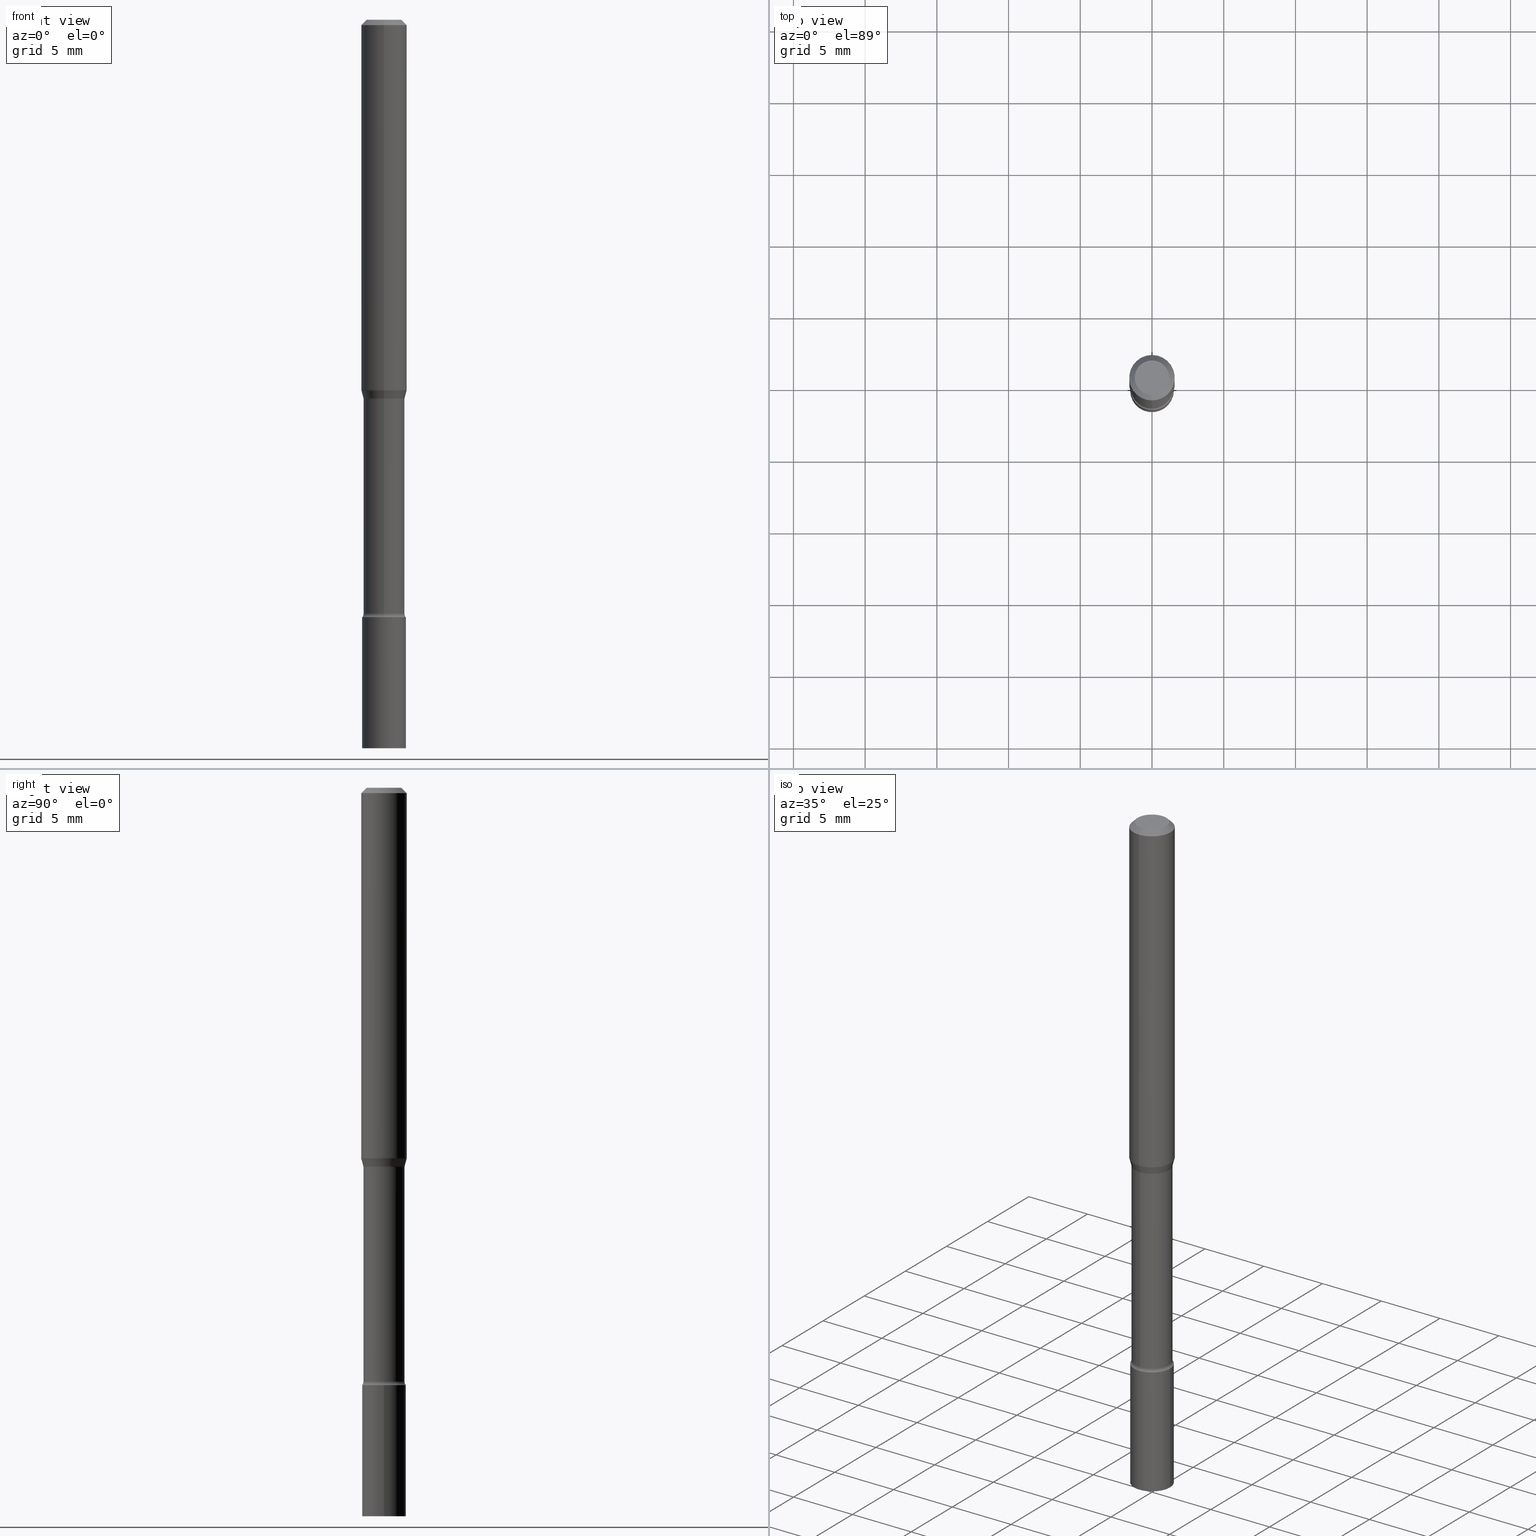
[diagram: canonical four-view strip — front | top / right | iso, engineering-drawing reading convention]
A machine part, canonical four-view strip (front | top / right | iso — engineering-drawing reading convention). The complete STEP part file that produces these views, byte-faithful:
ISO-10303-21;
HEADER;
FILE_DESCRIPTION (( 'STEP AP203' ),
    '1' );
FILE_NAME ('03480.STEP',
    '2024-03-08T21:29:29',
    ( '' ),
    ( '' ),
    'SwSTEP 2.0',
    'SolidWorks 2023',
    '' );
FILE_SCHEMA (( 'CONFIG_CONTROL_DESIGN' ));
ENDSEC;

DATA;
#1 = COORDINATED_UNIVERSAL_TIME_OFFSET ( 5, 0, .BEHIND. ) ;
#2 = LINE ( 'NONE', #295, #329 ) ;
#3 = ADVANCED_FACE ( 'NONE', ( #368 ), #223, .T. ) ;
#4 = CARTESIAN_POINT ( 'NONE',  ( 5.073275133327370099E-16, 0.07139999999999636915, -1.041974787463811225 ) ) ;
#5 = CARTESIAN_POINT ( 'NONE',  ( 3.316907271900976096E-16, 0.04749999999999999362, -1.803025897776820544E-16 ) ) ;
#6 = DIRECTION ( 'NONE',  ( -2.445468806185136597E-29, 3.491481338843145583E-15, 1.000000000000000000 ) ) ;
#7 = AXIS2_PLACEMENT_3D ( 'NONE', #405, #157, #76 ) ;
#8 = AXIS2_PLACEMENT_3D ( 'NONE', #200, #489, #378 ) ;
#9 = APPLICATION_PROTOCOL_DEFINITION ( 'international standard', 'config_control_design', 1994, #80 ) ;
#10 = CALENDAR_DATE ( 2024, 8, 3 ) ;
#11 = APPROVAL ( #298, 'UNSPECIFIED' ) ;
#12 = CARTESIAN_POINT ( 'NONE',  ( 4.010568842143624288E-29, -5.726029395702758897E-15, -1.639999999999999902 ) ) ;
#13 = PERSON_AND_ORGANIZATION_ROLE ( 'creator' ) ;
#14 = ORIENTED_EDGE ( 'NONE', *, *, #438, .F. ) ;
#15 = AXIS2_PLACEMENT_3D ( 'NONE', #473, #229, #435 ) ;
#16 = PERSON_AND_ORGANIZATION ( #182, #132 ) ;
#17 = AXIS2_PLACEMENT_3D ( 'NONE', #251, #411, #154 ) ;
#18 = ORIENTED_EDGE ( 'NONE', *, *, #341, .F. ) ;
#19 = DIRECTION ( 'NONE',  ( 6.982962677686265922E-15, 1.000000000000000000, -3.483106191921935554E-15 ) ) ;
#20 = CALENDAR_DATE ( 2024, 8, 3 ) ;
#21 = ADVANCED_FACE ( 'NONE', ( #194 ), #205, .F. ) ;
#22 = ORIENTED_EDGE ( 'NONE', *, *, #333, .T. ) ;
#23 = PRODUCT ( '03480', '03480', '', ( #451 ) ) ;
#24 = FACE_OUTER_BOUND ( 'NONE', #92, .T. ) ;
#25 = PERSON_AND_ORGANIZATION ( #182, #132 ) ;
#26 = ORIENTED_EDGE ( 'NONE', *, *, #136, .T. ) ;
#27 = ORIENTED_EDGE ( 'NONE', *, *, #341, .T. ) ;
#28 = CARTESIAN_POINT ( 'NONE',  ( -3.974081752709265530E-16, -0.05691111260566760616, -1.038092501787272859 ) ) ;
#29 = ORIENTED_EDGE ( 'NONE', *, *, #348, .T. ) ;
#30 = CIRCLE ( 'NONE', #176, 0.04749999999999999362 ) ;
#31 = DIRECTION ( 'NONE',  ( -2.445460846528019435E-29, 3.491492737525173105E-15, 1.000000000000000000 ) ) ;
#32 = APPROVAL ( #471, 'UNSPECIFIED' ) ;
#33 = PLANE ( 'NONE',  #118 ) ;
#34 = EDGE_CURVE ( 'NONE', #508, #105, #455, .T. ) ;
#35 = CARTESIAN_POINT ( 'NONE',  ( 0.000000000000000000, 0.000000000000000000, 0.000000000000000000 ) ) ;
#36 = DIRECTION ( 'NONE',  ( -6.982962677686265133E-15, -1.000000000000000000, 3.491492737525173500E-15 ) ) ;
#37 = CARTESIAN_POINT ( 'NONE',  ( 4.189777606612160768E-16, 0.05999999999999427319, -1.640000000000000346 ) ) ;
#38 = CARTESIAN_POINT ( 'NONE',  ( 4.043777764598214521E-16, 0.05691111260566035501, -1.038092501787273303 ) ) ;
#39 = DIRECTION ( 'NONE',  ( -2.445468806185136597E-29, 3.491481338843145583E-15, 1.000000000000000000 ) ) ;
#40 = CARTESIAN_POINT ( 'NONE',  ( 4.007461029686965945E-16, 0.05640000000000001956, -1.969201903964198546E-16 ) ) ;
#41 = DATE_AND_TIME ( #88, #206 ) ;
#42 = CIRCLE ( 'NONE', #504, 0.01500000000000003587 ) ;
#43 = LOCAL_TIME ( 16, 29, 29.00000000000000000, #1 ) ;
#44 = DIRECTION ( 'NONE',  ( -2.445460846528019435E-29, 3.491492737525173105E-15, 1.000000000000000000 ) ) ;
#45 = CC_DESIGN_PERSON_AND_ORGANIZATION_ASSIGNMENT ( #48, #376, ( #23 ) ) ;
#46 = DIRECTION ( 'NONE',  ( 2.445460846528018874E-29, -3.491492737525173105E-15, -1.000000000000000000 ) ) ;
#47 = DIRECTION ( 'NONE',  ( -2.445460846528019435E-29, 3.491492737525173105E-15, 1.000000000000000000 ) ) ;
#48 = PERSON_AND_ORGANIZATION ( #182, #132 ) ;
#49 = PERSON_AND_ORGANIZATION_ROLE ( 'creator' ) ;
#50 = DIRECTION ( 'NONE',  ( -6.982962677686268288E-15, -1.000000000000000000, 0.000000000000000000 ) ) ;
#51 = VERTEX_POINT ( 'NONE', #461 ) ;
#52 = ADVANCED_FACE ( 'NONE', ( #24 ), #502, .T. ) ;
#53 = EDGE_LOOP ( 'NONE', ( #381, #58, #436, #352 ) ) ;
#54 = ORIENTED_EDGE ( 'NONE', *, *, #482, .T. ) ;
#55 = CARTESIAN_POINT ( 'NONE',  ( 4.010568842143624288E-29, -5.726029395702758897E-15, -1.639999999999999902 ) ) ;
#56 = CIRCLE ( 'NONE', #8, 0.06250000000000000000 ) ;
#57 = PRODUCT_DEFINITION_SHAPE ( 'NONE', 'NONE',  #407 ) ;
#58 = ORIENTED_EDGE ( 'NONE', *, *, #169, .T. ) ;
#59 = VERTEX_POINT ( 'NONE', #98 ) ;
#60 = EDGE_LOOP ( 'NONE', ( #382, #191 ) ) ;
#61 = PLANE ( 'NONE',  #484 ) ;
#62 = PERSON_AND_ORGANIZATION ( #182, #132 ) ;
#63 = EDGE_LOOP ( 'NONE', ( #392, #421 ) ) ;
#64 = AXIS2_PLACEMENT_3D ( 'NONE', #350, #319, #19 ) ;
#65 = ORIENTED_EDGE ( 'NONE', *, *, #83, .T. ) ;
#66 = DIRECTION ( 'NONE',  ( -6.982962677686265922E-15, -1.000000000000000000, 4.370956789862821150E-15 ) ) ;
#67 = ORIENTED_EDGE ( 'NONE', *, *, #83, .F. ) ;
#68 = ADVANCED_FACE ( 'NONE', ( #388 ), #499, .T. ) ;
#69 = DIRECTION ( 'NONE',  ( 1.000000000000000000, -6.982962677686267499E-15, 4.876176775795936353E-29 ) ) ;
#70 = CARTESIAN_POINT ( 'NONE',  ( 3.668191269792036562E-31, -5.237239106287770234E-17, -0.01500000000000003067 ) ) ;
#71 = EDGE_CURVE ( 'NONE', #464, #226, #433, .T. ) ;
#72 = AXIS2_PLACEMENT_3D ( 'NONE', #197, #31, #106 ) ;
#73 = AXIS2_PLACEMENT_3D ( 'NONE', #476, #409, #326 ) ;
#74 = DIRECTION ( 'NONE',  ( -2.445460846528019435E-29, 3.491492737525173105E-15, 1.000000000000000000 ) ) ;
#75 = ADVANCED_FACE ( 'NONE', ( #510 ), #518, .T. ) ;
#76 = DIRECTION ( 'NONE',  ( -6.982962677686265922E-15, -1.000000000000000000, 2.421851058212999609E-15 ) ) ;
#77 = DIRECTION ( 'NONE',  ( -6.982962677686266711E-15, -1.000000000000000000, 3.491492737525173105E-15 ) ) ;
#78 = CYLINDRICAL_SURFACE ( 'NONE', #17, 0.06250000000000000000 ) ;
#79 = CC_DESIGN_DATE_AND_TIME_ASSIGNMENT ( #272, #146, ( #426 ) ) ;
#80 = APPLICATION_CONTEXT ( 'configuration controlled 3d designs of mechanical parts and assemblies' ) ;
#81 = AXIS2_PLACEMENT_3D ( 'NONE', #467, #103, #139 ) ;
#82 = AXIS2_PLACEMENT_3D ( 'NONE', #454, #452, #490 ) ;
#83 = EDGE_CURVE ( 'NONE', #97, #51, #253, .T. ) ;
#84 = CC_DESIGN_APPROVAL ( #32, ( #426 ) ) ;
#85 = EDGE_CURVE ( 'NONE', #59, #266, #447, .T. ) ;
#86 = DIRECTION ( 'NONE',  ( -2.445460846528019435E-29, 3.491492737525173105E-15, 1.000000000000000000 ) ) ;
#87 = DIRECTION ( 'NONE',  ( 1.000000000000000000, -6.982962677686268288E-15, 0.000000000000000000 ) ) ;
#88 = CALENDAR_DATE ( 2024, 8, 3 ) ;
#89 = CIRCLE ( 'NONE', #166, 0.01499999999999999424 ) ;
#90 = CIRCLE ( 'NONE', #294, 0.06250000000000000000 ) ;
#91 = ADVANCED_BREP_SHAPE_REPRESENTATION ( '03480', ( #161, #339, #456 ), #259 ) ;
#92 = EDGE_LOOP ( 'NONE', ( #67, #222 ) ) ;
#93 = EDGE_CURVE ( 'NONE', #346, #140, #362, .T. ) ;
#94 = FACE_OUTER_BOUND ( 'NONE', #387, .T. ) ;
#95 = APPROVAL_ROLE ( '' ) ;
#96 = ORIENTED_EDGE ( 'NONE', *, *, #271, .T. ) ;
#97 = VERTEX_POINT ( 'NONE', #108 ) ;
#98 = CARTESIAN_POINT ( 'NONE',  ( -3.773273898774340269E-16, -0.04749999999999999362, 1.369325355419729818E-16 ) ) ;
#99 = EDGE_LOOP ( 'NONE', ( #218, #342 ) ) ;
#100 = DIRECTION ( 'NONE',  ( -6.982962677686265133E-15, -1.000000000000000000, 3.491492737525173500E-15 ) ) ;
#101 = LOCAL_TIME ( 16, 29, 29.00000000000000000, #492 ) ;
#102 = EDGE_LOOP ( 'NONE', ( #96, #181, #389, #187 ) ) ;
#103 = DIRECTION ( 'NONE',  ( -2.445460846528019435E-29, 3.491492737525173105E-15, 1.000000000000000000 ) ) ;
#104 = ORIENTED_EDGE ( 'NONE', *, *, #71, .T. ) ;
#105 = VERTEX_POINT ( 'NONE', #28 ) ;
#106 = DIRECTION ( 'NONE',  ( -6.982962677686265922E-15, -1.000000000000000000, 2.400100673301878656E-15 ) ) ;
#107 = ADVANCED_FACE ( 'NONE', ( #428 ), #61, .T. ) ;
#108 = CARTESIAN_POINT ( 'NONE',  ( 0.05999999999999999778, -7.401940438347467010E-15, -2.000000000000000000 ) ) ;
#109 = VECTOR ( 'NONE', #325, 39.37007874015748143 ) ;
#110 = VECTOR ( 'NONE', #292, 39.37007874015748143 ) ;
#111 = ORIENTED_EDGE ( 'NONE', *, *, #379, .F. ) ;
#112 = CARTESIAN_POINT ( 'NONE',  ( 3.840629472727447874E-16, 0.04749999999999999362, -1.947592745229184365E-16 ) ) ;
#113 = FACE_OUTER_BOUND ( 'NONE', #462, .T. ) ;
#114 = ADVANCED_FACE ( 'NONE', ( #463 ), #237, .T. ) ;
#115 = DIRECTION ( 'NONE',  ( 1.000000000000000000, -7.105427357601001070E-15, 4.926315648135677063E-29 ) ) ;
#116 = FACE_OUTER_BOUND ( 'NONE', #60, .T. ) ;
#117 = DIRECTION ( 'NONE',  ( -2.445460846528019435E-29, 3.491492737525173105E-15, 1.000000000000000000 ) ) ;
#118 = AXIS2_PLACEMENT_3D ( 'NONE', #37, #287, #195 ) ;
#119 = CARTESIAN_POINT ( 'NONE',  ( 3.986728343145079357E-29, -5.691991481519761195E-15, -1.630251153914436868 ) ) ;
#120 = CC_DESIGN_PERSON_AND_ORGANIZATION_ASSIGNMENT ( #16, #275, ( #426 ) ) ;
#121 = LINE ( 'NONE', #38, #280 ) ;
#122 = CARTESIAN_POINT ( 'NONE',  ( 3.668191269792036562E-31, -5.237239106287770234E-17, -0.01500000000000003067 ) ) ;
#123 = CARTESIAN_POINT ( 'NONE',  ( 2.538614568195094171E-29, -3.624492430869601814E-15, -1.038092501787273081 ) ) ;
#124 = CIRCLE ( 'NONE', #151, 0.05999999999999999778 ) ;
#125 = DIRECTION ( 'NONE',  ( 1.000000000000000000, 0.000000000000000000, 0.000000000000000000 ) ) ;
#126 = DIRECTION ( 'NONE',  ( -6.982962677686265922E-15, -1.000000000000000000, 3.491492737525173105E-15 ) ) ;
#127 = DIRECTION ( 'NONE',  ( -2.445460846528019435E-29, 3.491492737525173105E-15, 1.000000000000000000 ) ) ;
#128 = DIRECTION ( 'NONE',  ( -1.000000000000000000, 6.982962677686265922E-15, -4.883557194083112901E-29 ) ) ;
#129 = DIRECTION ( 'NONE',  ( -2.445460846528019435E-29, 3.491492737525173105E-15, 1.000000000000000000 ) ) ;
#130 = DIRECTION ( 'NONE',  ( 1.000000000000000000, -6.982962677686268288E-15, 0.000000000000000000 ) ) ;
#131 = AXIS2_PLACEMENT_3D ( 'NONE', #516, #519, #36 ) ;
#132 = ORGANIZATION ( 'UNSPECIFIED', 'UNSPECIFIED', '' ) ;
#133 = ORIENTED_EDGE ( 'NONE', *, *, #285, .F. ) ;
#134 = CC_DESIGN_PERSON_AND_ORGANIZATION_ASSIGNMENT ( #62, #230, ( #414 ) ) ;
#135 = DATE_AND_TIME ( #351, #101 ) ;
#136 = EDGE_CURVE ( 'NONE', #190, #357, #413, .T. ) ;
#137 = ORIENTED_EDGE ( 'NONE', *, *, #219, .F. ) ;
#138 = ORIENTED_EDGE ( 'NONE', *, *, #361, .F. ) ;
#139 = DIRECTION ( 'NONE',  ( -6.982962677686265922E-15, -1.000000000000000000, 4.553079989440439092E-15 ) ) ;
#140 = VERTEX_POINT ( 'NONE', #145 ) ;
#141 = DIRECTION ( 'NONE',  ( -6.982962677686265922E-15, -1.000000000000000000, 3.491492737525173105E-15 ) ) ;
#142 = AXIS2_PLACEMENT_3D ( 'NONE', #321, #39, #69 ) ;
#143 = CIRCLE ( 'NONE', #384, 0.05640000000000004732 ) ;
#144 = ORIENTED_EDGE ( 'NONE', *, *, #495, .F. ) ;
#145 = CARTESIAN_POINT ( 'NONE',  ( 4.263256414561002290E-16, 0.05999999999999428707, -1.640000000000000346 ) ) ;
#146 = DATE_TIME_ROLE ( 'classification_date' ) ;
#147 = EDGE_CURVE ( 'NONE', #425, #190, #286, .T. ) ;
#148 = EDGE_CURVE ( 'NONE', #105, #357, #89, .T. ) ;
#149 = CARTESIAN_POINT ( 'NONE',  ( 7.070651303014881556E-46, -1.009508195933673930E-31, -2.891336949047271503E-17 ) ) ;
#150 = DIRECTION ( 'NONE',  ( 1.839019923739594004E-15, 0.2588190451025240701, 0.9659258262890673130 ) ) ;
#151 = AXIS2_PLACEMENT_3D ( 'NONE', #12, #6, #130 ) ;
#152 = DIRECTION ( 'NONE',  ( -6.982962677686265922E-15, -1.000000000000000000, 2.400100673301878656E-15 ) ) ;
#153 = CIRCLE ( 'NONE', #520, 0.01500000000000003587 ) ;
#154 = DIRECTION ( 'NONE',  ( -6.982962677686265922E-15, -1.000000000000000000, 3.491492737525173105E-15 ) ) ;
#155 = DIRECTION ( 'NONE',  ( -6.982962677686265922E-15, -1.000000000000000000, 3.491492737525173105E-15 ) ) ;
#156 = CARTESIAN_POINT ( 'NONE',  ( -4.364351673553916201E-16, -0.06250000000000000000, 2.182182960953233191E-16 ) ) ;
#157 = DIRECTION ( 'NONE',  ( -2.445460846528019435E-29, 3.491492737525173105E-15, 1.000000000000000000 ) ) ;
#158 = AXIS2_PLACEMENT_3D ( 'NONE', #119, #283, #291 ) ;
#159 = LINE ( 'NONE', #481, #110 ) ;
#160 = EDGE_CURVE ( 'NONE', #226, #349, #244, .T. ) ;
#161 = MANIFOLD_SOLID_BREP ( 'Body-Move/Copy2[1]', #322 ) ;
#162 = CARTESIAN_POINT ( 'NONE',  ( -4.364351673553912750E-16, -0.06250000000000005551, -0.01499999999999981209 ) ) ;
#163 = CARTESIAN_POINT ( 'NONE',  ( 4.242334931549545326E-16, 0.05691111260566035501, -1.038092501787273303 ) ) ;
#164 = FACE_OUTER_BOUND ( 'NONE', #273, .T. ) ;
#165 = CARTESIAN_POINT ( 'NONE',  ( 0.000000000000000000, 0.000000000000000000, 0.000000000000000000 ) ) ;
#166 = AXIS2_PLACEMENT_3D ( 'NONE', #444, #327, #208 ) ;
#167 = LOCAL_TIME ( 16, 29, 29.00000000000000000, #173 ) ;
#168 =( NAMED_UNIT ( * ) PLANE_ANGLE_UNIT ( ) SI_UNIT ( $, .RADIAN. ) );
#169 = EDGE_CURVE ( 'NONE', #508, #464, #121, .T. ) ;
#170 = DIRECTION ( 'NONE',  ( -6.982962677686265922E-15, -1.000000000000000000, 4.553079989440439092E-15 ) ) ;
#171 = DIRECTION ( 'NONE',  ( -6.982962677686265133E-15, -1.000000000000000000, 4.843702116425994485E-15 ) ) ;
#172 = DIRECTION ( 'NONE',  ( 6.982962677686265922E-15, 1.000000000000000000, -3.491492737525173105E-15 ) ) ;
#173 = COORDINATED_UNIVERSAL_TIME_OFFSET ( 5, 0, .BEHIND. ) ;
#174 = ORIENTED_EDGE ( 'NONE', *, *, #372, .T. ) ;
#175 = APPROVAL ( #308, 'UNSPECIFIED' ) ;
#176 = AXIS2_PLACEMENT_3D ( 'NONE', #149, #439, #77 ) ;
#177 = COORDINATED_UNIVERSAL_TIME_OFFSET ( 5, 0, .BEHIND. ) ;
#178 = VERTEX_POINT ( 'NONE', #288 ) ;
#179 = CARTESIAN_POINT ( 'NONE',  ( 2.548116839574137030E-29, -3.638035525974948720E-15, -1.041974787463810781 ) ) ;
#180 = SECURITY_CLASSIFICATION_LEVEL ( 'unclassified' ) ;
#181 = ORIENTED_EDGE ( 'NONE', *, *, #361, .T. ) ;
#182 = PERSON ( 'UNSPECIFIED', 'UNSPECIFIED', 'UNSPECIFIED', ('UNSPECIFIED'), ('UNSPECIFIED'), ('UNSPECIFIED') ) ;
#183 = ORIENTED_EDGE ( 'NONE', *, *, #239, .F. ) ;
#184 = DIRECTION ( 'NONE',  ( -6.982962677686266711E-15, -1.000000000000000000, 3.491492737525173105E-15 ) ) ;
#185 = CALENDAR_DATE ( 2024, 8, 3 ) ;
#186 = ORIENTED_EDGE ( 'NONE', *, *, #147, .F. ) ;
#187 = ORIENTED_EDGE ( 'NONE', *, *, #160, .F. ) ;
#188 = AXIS2_PLACEMENT_3D ( 'NONE', #274, #424, #184 ) ;
#189 = AXIS2_PLACEMENT_3D ( 'NONE', #209, #127, #255 ) ;
#190 = VERTEX_POINT ( 'NONE', #201 ) ;
#191 = ORIENTED_EDGE ( 'NONE', *, *, #310, .F. ) ;
#192 = DESIGN_CONTEXT ( 'detailed design', #80, 'design' ) ;
#193 = EDGE_CURVE ( 'NONE', #105, #226, #440, .T. ) ;
#194 = FACE_OUTER_BOUND ( 'NONE', #278, .T. ) ;
#195 = DIRECTION ( 'NONE',  ( -6.982962677686265922E-15, -1.000000000000000000, 3.491492737525173105E-15 ) ) ;
#196 = EDGE_LOOP ( 'NONE', ( #397, #503, #427, #460 ) ) ;
#197 = CARTESIAN_POINT ( 'NONE',  ( 2.538614568195094171E-29, -3.624492430869601814E-15, -1.038092501787273081 ) ) ;
#198 = CYLINDRICAL_SURFACE ( 'NONE', #142, 0.05999999999999999778 ) ;
#199 = CIRCLE ( 'NONE', #234, 0.05999999999999999778 ) ;
#200 = CARTESIAN_POINT ( 'NONE',  ( 3.668191269792036562E-31, -5.237239106287770234E-17, -0.01500000000000003067 ) ) ;
#201 = CARTESIAN_POINT ( 'NONE',  ( 4.007461029687364320E-16, 0.05639999999999635583, -1.041974787463811003 ) ) ;
#202 = CARTESIAN_POINT ( 'NONE',  ( -4.364351673553668696E-16, -0.06250000000000356659, -1.017234490073829489 ) ) ;
#203 = DIRECTION ( 'NONE',  ( -2.445460846528019435E-29, 3.491492737525173105E-15, 1.000000000000000000 ) ) ;
#204 = DIRECTION ( 'NONE',  ( 0.000000000000000000, 0.000000000000000000, 1.000000000000000000 ) ) ;
#205 = TOROIDAL_SURFACE ( 'NONE', #404, 0.07140000000000000513, 0.01499999999999999771 ) ;
#206 = LOCAL_TIME ( 16, 29, 29.00000000000000000, #453 ) ;
#207 = EDGE_CURVE ( 'NONE', #357, #190, #367, .T. ) ;
#208 = DIRECTION ( 'NONE',  ( -6.982962677686266711E-15, -1.000000000000000000, 0.000000000000000000 ) ) ;
#209 = CARTESIAN_POINT ( 'NONE',  ( 3.986715366904879250E-29, -5.692010064234288967E-15, -1.630251153914436868 ) ) ;
#210 = ADVANCED_FACE ( 'NONE', ( #371 ), #198, .T. ) ;
#211 = CARTESIAN_POINT ( 'NONE',  ( 4.440892098500625669E-16, 0.06250000000000000000, -2.182182960953233191E-16 ) ) ;
#212 = CLOSED_SHELL ( 'NONE', ( #21, #241, #250, #3, #305, #245, #513, #400, #75, #402, #470, #445, #114, #334 ) ) ;
#213 = AXIS2_PLACEMENT_3D ( 'NONE', #420, #303, #458 ) ;
#214 = DIRECTION ( 'NONE',  ( 7.105427357601006592E-15, 1.000000000000000000, 0.000000000000000000 ) ) ;
#215 = CC_DESIGN_SECURITY_CLASSIFICATION ( #426, ( #414 ) ) ;
#216 = DIRECTION ( 'NONE',  ( -2.445460846528019435E-29, 3.491492737525173105E-15, 1.000000000000000000 ) ) ;
#217 = CC_DESIGN_DATE_AND_TIME_ASSIGNMENT ( #317, #500, ( #407 ) ) ;
#218 = ORIENTED_EDGE ( 'NONE', *, *, #412, .T. ) ;
#219 = EDGE_CURVE ( 'NONE', #228, #349, #375, .T. ) ;
#220 = DIRECTION ( 'NONE',  ( 1.000000000000000000, -7.105427357601001070E-15, 4.926315648135677063E-29 ) ) ;
#221 = ORIENTED_EDGE ( 'NONE', *, *, #207, .T. ) ;
#222 = ORIENTED_EDGE ( 'NONE', *, *, #398, .F. ) ;
#223 = CONICAL_SURFACE ( 'NONE', #465, 0.06250000000000000000, 0.7853981633974483900 ) ;
#224 = DIRECTION ( 'NONE',  ( 1.000000000000000000, -6.982962677686265922E-15, 4.876176775795935793E-29 ) ) ;
#225 = APPROVAL_DATE_TIME ( #135, #175 ) ;
#226 = VERTEX_POINT ( 'NONE', #202 ) ;
#227 = EDGE_CURVE ( 'NONE', #425, #140, #42, .T. ) ;
#228 = VERTEX_POINT ( 'NONE', #365 ) ;
#229 = DIRECTION ( 'NONE',  ( -2.445468806185136597E-29, 3.491481338843145583E-15, 1.000000000000000000 ) ) ;
#230 = PERSON_AND_ORGANIZATION_ROLE ( 'design_supplier' ) ;
#231 = ORIENTED_EDGE ( 'NONE', *, *, #93, .T. ) ;
#232 = ORIENTED_EDGE ( 'NONE', *, *, #285, .T. ) ;
#233 = DIRECTION ( 'NONE',  ( 2.438088387897960049E-29, -3.491481338843145188E-15, -1.000000000000000000 ) ) ;
#234 = AXIS2_PLACEMENT_3D ( 'NONE', #377, #299, #170 ) ;
#235 = APPLICATION_CONTEXT ( 'configuration controlled 3d designs of mechanical parts and assemblies' ) ;
#236 = ORIENTED_EDGE ( 'NONE', *, *, #423, .F. ) ;
#237 = CYLINDRICAL_SURFACE ( 'NONE', #293, 0.05640000000000001956 ) ;
#238 = CC_DESIGN_PERSON_AND_ORGANIZATION_ASSIGNMENT ( #429, #13, ( #414 ) ) ;
#239 = EDGE_CURVE ( 'NONE', #51, #419, #477, .T. ) ;
#240 = CARTESIAN_POINT ( 'NONE',  ( 0.05999999999999999778, -6.145007156363934742E-15, -1.639999999999999902 ) ) ;
#241 = ADVANCED_FACE ( 'NONE', ( #401 ), #249, .T. ) ;
#242 = ORIENTED_EDGE ( 'NONE', *, *, #333, .F. ) ;
#243 = CARTESIAN_POINT ( 'NONE',  ( 3.986728343145079357E-29, -5.691991481519761195E-15, -1.630251153914436868 ) ) ;
#244 = LINE ( 'NONE', #156, #268 ) ;
#245 = ADVANCED_FACE ( 'NONE', ( #517 ), #491, .T. ) ;
#246 = AXIS2_PLACEMENT_3D ( 'NONE', #511, #233, #506 ) ;
#247 = LOCAL_TIME ( 16, 29, 29.00000000000000000, #177 ) ;
#248 = CARTESIAN_POINT ( 'NONE',  ( 5.073275133327518011E-16, 0.07139999999999438463, -1.630251153914437090 ) ) ;
#249 = CYLINDRICAL_SURFACE ( 'NONE', #131, 0.05640000000000001956 ) ;
#250 = ADVANCED_FACE ( 'NONE', ( #479 ), #394, .F. ) ;
#251 = CARTESIAN_POINT ( 'NONE',  ( 0.000000000000000000, 0.000000000000000000, 0.000000000000000000 ) ) ;
#252 =( NAMED_UNIT ( * ) SI_UNIT ( $, .STERADIAN. ) SOLID_ANGLE_UNIT ( ) );
#253 = CIRCLE ( 'NONE', #15, 0.05999999999999999778 ) ;
#254 = TOROIDAL_SURFACE ( 'NONE', #418, 0.07140000000000007452, 0.01500000000000003240 ) ;
#255 = DIRECTION ( 'NONE',  ( -6.982962677686265133E-15, -1.000000000000000000, 4.843702116425994485E-15 ) ) ;
#256 = CARTESIAN_POINT ( 'NONE',  ( -4.287811248607203282E-16, -0.06250000000000005551, -0.01499999999999981209 ) ) ;
#257 =( LENGTH_UNIT ( ) NAMED_UNIT ( * ) SI_UNIT ( $, .METRE. ) );
#258 = APPROVAL_DATE_TIME ( #41, #11 ) ;
#259 =( GEOMETRIC_REPRESENTATION_CONTEXT ( 3 ) GLOBAL_UNCERTAINTY_ASSIGNED_CONTEXT ( ( #509 ) ) GLOBAL_UNIT_ASSIGNED_CONTEXT ( ( #300, #168, #252 ) ) REPRESENTATION_CONTEXT ( 'NONE', 'WORKASPACE' ) );
#260 = CARTESIAN_POINT ( 'NONE',  ( -4.985835351867600214E-16, -0.07140000000000576441, -1.630251153914436646 ) ) ;
#261 = ORIENTED_EDGE ( 'NONE', *, *, #207, .F. ) ;
#262 = FACE_OUTER_BOUND ( 'NONE', #63, .T. ) ;
#263 = VERTEX_POINT ( 'NONE', #240 ) ;
#264 = EDGE_LOOP ( 'NONE', ( #353, #14, #232, #318 ) ) ;
#265 = CARTESIAN_POINT ( 'NONE',  ( 0.000000000000000000, 0.000000000000000000, 0.000000000000000000 ) ) ;
#266 = VERTEX_POINT ( 'NONE', #112 ) ;
#267 = ORIENTED_EDGE ( 'NONE', *, *, #307, .F. ) ;
#268 = VECTOR ( 'NONE', #74, 39.37007874015748143 ) ;
#269 = AXIS2_PLACEMENT_3D ( 'NONE', #304, #344, #87 ) ;
#270 = DIRECTION ( 'NONE',  ( -2.438088387897960049E-29, 3.491481338843145188E-15, 1.000000000000000000 ) ) ;
#271 = EDGE_CURVE ( 'NONE', #226, #464, #90, .T. ) ;
#272 = DATE_AND_TIME ( #185, #167 ) ;
#273 = EDGE_LOOP ( 'NONE', ( #267, #236, #301, #221 ) ) ;
#274 = CARTESIAN_POINT ( 'NONE',  ( 7.070651303014881556E-46, -1.009508195933673930E-31, -2.891336949047271503E-17 ) ) ;
#275 = PERSON_AND_ORGANIZATION_ROLE ( 'classification_officer' ) ;
#276 = ORIENTED_EDGE ( 'NONE', *, *, #85, .F. ) ;
#277 = ORIENTED_EDGE ( 'NONE', *, *, #227, .T. ) ;
#278 = EDGE_LOOP ( 'NONE', ( #281, #431, #26, #497 ) ) ;
#279 = DIRECTION ( 'NONE',  ( 6.982962677686265922E-15, 1.000000000000000000, -3.483106191921935554E-15 ) ) ;
#280 = VECTOR ( 'NONE', #150, 39.37007874015748854 ) ;
#281 = ORIENTED_EDGE ( 'NONE', *, *, #34, .F. ) ;
#282 = DIMENSIONAL_EXPONENTS ( 1.000000000000000000, 0.000000000000000000, 0.000000000000000000, 0.000000000000000000, 0.000000000000000000, 0.000000000000000000, 0.000000000000000000 ) ;
#283 = DIRECTION ( 'NONE',  ( -2.445460846528019435E-29, 3.491492737525173105E-15, 1.000000000000000000 ) ) ;
#284 = DIRECTION ( 'NONE',  ( -2.445460846528019435E-29, 3.491492737525173105E-15, 1.000000000000000000 ) ) ;
#285 = EDGE_CURVE ( 'NONE', #266, #228, #159, .T. ) ;
#286 = LINE ( 'NONE', #40, #478 ) ;
#287 = DIRECTION ( 'NONE',  ( -2.445460846528018874E-29, 3.491492737525173105E-15, 1.000000000000000000 ) ) ;
#288 = CARTESIAN_POINT ( 'NONE',  ( -3.938390950214658630E-16, -0.05640000000000573721, -1.630251153914436646 ) ) ;
#289 = AXIS2_PLACEMENT_3D ( 'NONE', #265, #314, #432 ) ;
#290 = CIRCLE ( 'NONE', #385, 0.01499999999999999424 ) ;
#291 = DIRECTION ( 'NONE',  ( -6.982962677686265922E-15, -1.000000000000000000, 3.491492737525173105E-15 ) ) ;
#292 = DIRECTION ( 'NONE',  ( 4.937700262164548042E-15, 0.7071067811865451302, -0.7071067811865499042 ) ) ;
#293 = AXIS2_PLACEMENT_3D ( 'NONE', #35, #311, #100 ) ;
#294 = AXIS2_PLACEMENT_3D ( 'NONE', #437, #203, #515 ) ;
#295 = CARTESIAN_POINT ( 'NONE',  ( 0.05999999999999999778, -4.189777606611760421E-16, 2.925706065477561756E-30 ) ) ;
#296 = APPLICATION_PROTOCOL_DEFINITION ( 'international standard', 'config_control_design', 1994, #235 ) ;
#297 = PLANE ( 'NONE',  #313 ) ;
#298 = APPROVAL_STATUS ( 'not_yet_approved' ) ;
#299 = DIRECTION ( 'NONE',  ( -2.445460846528019435E-29, 3.491492737525173105E-15, 1.000000000000000000 ) ) ;
#300 =( CONVERSION_BASED_UNIT ( 'INCH', #410 ) LENGTH_UNIT ( ) NAMED_UNIT ( #282 ) );
#301 = ORIENTED_EDGE ( 'NONE', *, *, #148, .T. ) ;
#302 = CIRCLE ( 'NONE', #213, 0.05999999999999999778 ) ;
#303 = DIRECTION ( 'NONE',  ( -2.445468806185136597E-29, 3.491481338843145583E-15, 1.000000000000000000 ) ) ;
#304 = CARTESIAN_POINT ( 'NONE',  ( 4.010568842143624288E-29, -5.726029395702758897E-15, -1.639999999999999902 ) ) ;
#305 = ADVANCED_FACE ( 'NONE', ( #446 ), #78, .T. ) ;
#306 = ORIENTED_EDGE ( 'NONE', *, *, #239, .T. ) ;
#307 = EDGE_CURVE ( 'NONE', #508, #190, #290, .T. ) ;
#308 = APPROVAL_STATUS ( 'not_yet_approved' ) ;
#309 = ORIENTED_EDGE ( 'NONE', *, *, #412, .F. ) ;
#310 = EDGE_CURVE ( 'NONE', #140, #346, #199, .T. ) ;
#311 = DIRECTION ( 'NONE',  ( -2.445460846528019435E-29, 3.491492737525173105E-15, 1.000000000000000000 ) ) ;
#312 = ORIENTED_EDGE ( 'NONE', *, *, #398, .T. ) ;
#313 = AXIS2_PLACEMENT_3D ( 'NONE', #5, #46, #172 ) ;
#314 = DIRECTION ( 'NONE',  ( -2.445468806185136597E-29, 3.491481338843145583E-15, 1.000000000000000000 ) ) ;
#315 = EDGE_LOOP ( 'NONE', ( #276, #174, #54, #133 ) ) ;
#316 = ORIENTED_EDGE ( 'NONE', *, *, #147, .T. ) ;
#317 = DATE_AND_TIME ( #10, #43 ) ;
#318 = ORIENTED_EDGE ( 'NONE', *, *, #219, .T. ) ;
#319 = DIRECTION ( 'NONE',  ( 2.445460846528019435E-29, -3.491492737525173105E-15, -1.000000000000000000 ) ) ;
#320 = EDGE_LOOP ( 'NONE', ( #65, #306, #309, #242 ) ) ;
#321 = CARTESIAN_POINT ( 'NONE',  ( 0.000000000000000000, 0.000000000000000000, 0.000000000000000000 ) ) ;
#322 = CLOSED_SHELL ( 'NONE', ( #210, #107, #68, #52 ) ) ;
#323 = TOROIDAL_SURFACE ( 'NONE', #82, 0.07140000000000000513, 0.01499999999999999771 ) ;
#324 = CARTESIAN_POINT ( 'NONE',  ( 4.135358722124185524E-16, 0.05639999999999435049, -1.630251153914437090 ) ) ;
#325 = DIRECTION ( 'NONE',  ( -2.445468806185136877E-29, 3.491481338843145188E-15, 1.000000000000000000 ) ) ;
#326 = DIRECTION ( 'NONE',  ( -6.982962677686265922E-15, -1.000000000000000000, 2.400100673301878656E-15 ) ) ;
#327 = DIRECTION ( 'NONE',  ( -1.000000000000000000, 6.982962677686265922E-15, -4.883557194083112901E-29 ) ) ;
#328 = AXIS2_PLACEMENT_3D ( 'NONE', #386, #390, #356 ) ;
#329 = VECTOR ( 'NONE', #373, 39.37007874015748143 ) ;
#330 = CARTESIAN_POINT ( 'NONE',  ( -3.974081752709265530E-16, -0.05691111260566760616, -1.038092501787272859 ) ) ;
#331 = CC_DESIGN_PERSON_AND_ORGANIZATION_ASSIGNMENT ( #417, #49, ( #407 ) ) ;
#332 = LINE ( 'NONE', #211, #443 ) ;
#333 = EDGE_CURVE ( 'NONE', #97, #263, #2, .T. ) ;
#334 = ADVANCED_FACE ( 'NONE', ( #164 ), #323, .F. ) ;
#335 = CARTESIAN_POINT ( 'NONE',  ( -3.938390950214798652E-16, -0.05640000000000363473, -1.041974787463810781 ) ) ;
#336 = AXIS2_PLACEMENT_3D ( 'NONE', #123, #129, #488 ) ;
#337 = CYLINDRICAL_SURFACE ( 'NONE', #485, 0.06250000000000000000 ) ;
#338 = PERSON_AND_ORGANIZATION ( #182, #132 ) ;
#339 = MANIFOLD_SOLID_BREP ( 'Body-Move/Copy2[2]', #212 ) ;
#340 = CARTESIAN_POINT ( 'NONE',  ( 3.986715366904879250E-29, -5.692010064234288967E-15, -1.630251153914436868 ) ) ;
#341 = EDGE_CURVE ( 'NONE', #178, #346, #153, .T. ) ;
#342 = ORIENTED_EDGE ( 'NONE', *, *, #379, .T. ) ;
#343 = AXIS2_PLACEMENT_3D ( 'NONE', #486, #449, #152 ) ;
#344 = DIRECTION ( 'NONE',  ( -2.445468806185136597E-29, 3.491481338843145583E-15, 1.000000000000000000 ) ) ;
#345 = DATE_AND_TIME ( #20, #247 ) ;
#346 = VERTEX_POINT ( 'NONE', #450 ) ;
#347 = EDGE_LOOP ( 'NONE', ( #29, #316, #261, #472 ) ) ;
#348 = EDGE_CURVE ( 'NONE', #178, #425, #143, .T. ) ;
#349 = VERTEX_POINT ( 'NONE', #162 ) ;
#350 = CARTESIAN_POINT ( 'NONE',  ( 3.668191269792036562E-31, -5.237239106287770234E-17, -0.01500000000000003067 ) ) ;
#351 = CALENDAR_DATE ( 2024, 8, 3 ) ;
#352 = ORIENTED_EDGE ( 'NONE', *, *, #193, .F. ) ;
#353 = ORIENTED_EDGE ( 'NONE', *, *, #372, .F. ) ;
#354 = VECTOR ( 'NONE', #408, 39.37007874015748854 ) ;
#355 = VECTOR ( 'NONE', #86, 39.37007874015748143 ) ;
#356 = DIRECTION ( 'NONE',  ( -6.982962677686265922E-15, -1.000000000000000000, 2.421851058212999609E-15 ) ) ;
#357 = VERTEX_POINT ( 'NONE', #335 ) ;
#358 = DIRECTION ( 'NONE',  ( -2.445460846528019435E-29, 3.491492737525173105E-15, 1.000000000000000000 ) ) ;
#359 = EDGE_LOOP ( 'NONE', ( #186, #457, #498, #393 ) ) ;
#360 = DIRECTION ( 'NONE',  ( -2.445460846528019435E-29, 3.491492737525173105E-15, 1.000000000000000000 ) ) ;
#361 = EDGE_CURVE ( 'NONE', #464, #228, #332, .T. ) ;
#362 = CIRCLE ( 'NONE', #81, 0.05999999999999999778 ) ;
#363 = EDGE_CURVE ( 'NONE', #178, #357, #380, .T. ) ;
#364 = DIRECTION ( 'NONE',  ( -6.982962677686265922E-15, -1.000000000000000000, 3.483106191921935554E-15 ) ) ;
#365 = CARTESIAN_POINT ( 'NONE',  ( 4.440892098500875639E-16, 0.06249999999999995143, -0.01500000000000024751 ) ) ;
#366 = DIRECTION ( 'NONE',  ( 7.105427357600997914E-15, 1.000000000000000000, 0.000000000000000000 ) ) ;
#367 = CIRCLE ( 'NONE', #7, 0.05639999999999999181 ) ;
#368 = FACE_OUTER_BOUND ( 'NONE', #315, .T. ) ;
#369 = CIRCLE ( 'NONE', #189, 0.05640000000000004732 ) ;
#370 = APPROVAL_ROLE ( '' ) ;
#371 = FACE_OUTER_BOUND ( 'NONE', #320, .T. ) ;
#372 = EDGE_CURVE ( 'NONE', #59, #349, #487, .T. ) ;
#373 = DIRECTION ( 'NONE',  ( -2.445468806185136877E-29, 3.491481338843145188E-15, 1.000000000000000000 ) ) ;
#374 = DIRECTION ( 'NONE',  ( -4.851104656540964275E-15, -0.7071067811865500152, -0.7071067811865450192 ) ) ;
#375 = CIRCLE ( 'NONE', #441, 0.06250000000000000000 ) ;
#376 = PERSON_AND_ORGANIZATION_ROLE ( 'design_owner' ) ;
#377 = CARTESIAN_POINT ( 'NONE',  ( 4.010555788305951671E-29, -5.726048089541283278E-15, -1.639999999999999902 ) ) ;
#378 = DIRECTION ( 'NONE',  ( -6.982962677686265922E-15, -1.000000000000000000, 3.483106191921935554E-15 ) ) ;
#379 = EDGE_CURVE ( 'NONE', #419, #263, #124, .T. ) ;
#380 = LINE ( 'NONE', #415, #355 ) ;
#381 = ORIENTED_EDGE ( 'NONE', *, *, #423, .T. ) ;
#382 = ORIENTED_EDGE ( 'NONE', *, *, #93, .F. ) ;
#383 = PRODUCT_RELATED_PRODUCT_CATEGORY ( 'detail', '', ( #23 ) ) ;
#384 = AXIS2_PLACEMENT_3D ( 'NONE', #340, #47, #171 ) ;
#385 = AXIS2_PLACEMENT_3D ( 'NONE', #4, #220, #214 ) ;
#386 = CARTESIAN_POINT ( 'NONE',  ( 2.548108545812103926E-29, -3.638047403114231649E-15, -1.041974787463810781 ) ) ;
#387 = EDGE_LOOP ( 'NONE', ( #138, #104, #422, #137 ) ) ;
#388 = FACE_OUTER_BOUND ( 'NONE', #494, .T. ) ;
#389 = ORIENTED_EDGE ( 'NONE', *, *, #482, .F. ) ;
#390 = DIRECTION ( 'NONE',  ( -2.445460846528019435E-29, 3.491492737525173105E-15, 1.000000000000000000 ) ) ;
#391 = PERSON_AND_ORGANIZATION ( #182, #132 ) ;
#392 = ORIENTED_EDGE ( 'NONE', *, *, #438, .T. ) ;
#393 = ORIENTED_EDGE ( 'NONE', *, *, #136, .F. ) ;
#394 = TOROIDAL_SURFACE ( 'NONE', #158, 0.07140000000000007452, 0.01500000000000003240 ) ;
#395 = CIRCLE ( 'NONE', #269, 0.05999999999999999778 ) ;
#396 = CARTESIAN_POINT ( 'NONE',  ( 2.487607117213446070E-29, -3.551666834452899485E-15, -1.017234490073829711 ) ) ;
#397 = ORIENTED_EDGE ( 'NONE', *, *, #169, .F. ) ;
#398 = EDGE_CURVE ( 'NONE', #51, #97, #302, .T. ) ;
#399 = DIRECTION ( 'NONE',  ( 2.445460846528019435E-29, -3.491492737525173105E-15, -1.000000000000000000 ) ) ;
#400 = ADVANCED_FACE ( 'NONE', ( #94 ), #337, .T. ) ;
#401 = FACE_OUTER_BOUND ( 'NONE', #347, .T. ) ;
#402 = ADVANCED_FACE ( 'NONE', ( #262 ), #297, .F. ) ;
#403 = CARTESIAN_POINT ( 'NONE',  ( 4.440892098500872681E-16, 0.06249999999999643341, -1.017234490073830155 ) ) ;
#404 = AXIS2_PLACEMENT_3D ( 'NONE', #179, #360, #141 ) ;
#405 = CARTESIAN_POINT ( 'NONE',  ( 2.548108545812103926E-29, -3.638047403114231649E-15, -1.041974787463810781 ) ) ;
#406 = CC_DESIGN_APPROVAL ( #175, ( #414 ) ) ;
#407 = PRODUCT_DEFINITION ( 'UNKNOWN', '', #414, #192 ) ;
#408 = DIRECTION ( 'NONE',  ( -1.807323732225323828E-15, -0.2588190451025172978, 0.9659258262890690894 ) ) ;
#409 = DIRECTION ( 'NONE',  ( -2.445460846528019435E-29, 3.491492737525173105E-15, 1.000000000000000000 ) ) ;
#410 = LENGTH_MEASURE_WITH_UNIT ( LENGTH_MEASURE( 0.02539999999999999897 ), #257 );
#411 = DIRECTION ( 'NONE',  ( -2.445460846528019435E-29, 3.491492737525173105E-15, 1.000000000000000000 ) ) ;
#412 = EDGE_CURVE ( 'NONE', #263, #419, #395, .T. ) ;
#413 = CIRCLE ( 'NONE', #328, 0.05639999999999999181 ) ;
#414 = PRODUCT_DEFINITION_FORMATION_WITH_SPECIFIED_SOURCE ( 'ANY', '', #23, .NOT_KNOWN. ) ;
#415 = CARTESIAN_POINT ( 'NONE',  ( -3.938390950215055032E-16, -0.05640000000000001956, 1.969201903964198546E-16 ) ) ;
#416 = FACE_OUTER_BOUND ( 'NONE', #196, .T. ) ;
#417 = PERSON_AND_ORGANIZATION ( #182, #132 ) ;
#418 = AXIS2_PLACEMENT_3D ( 'NONE', #243, #284, #155 ) ;
#419 = VERTEX_POINT ( 'NONE', #459 ) ;
#420 = CARTESIAN_POINT ( 'NONE',  ( 4.890937612370273194E-29, -6.982962677686291165E-15, -2.000000000000000000 ) ) ;
#421 = ORIENTED_EDGE ( 'NONE', *, *, #85, .T. ) ;
#422 = ORIENTED_EDGE ( 'NONE', *, *, #160, .T. ) ;
#423 = EDGE_CURVE ( 'NONE', #105, #508, #505, .T. ) ;
#424 = DIRECTION ( 'NONE',  ( -2.445460846528019435E-29, 3.491492737525173105E-15, 1.000000000000000000 ) ) ;
#425 = VERTEX_POINT ( 'NONE', #324 ) ;
#426 = SECURITY_CLASSIFICATION ( '', '', #180 ) ;
#427 = ORIENTED_EDGE ( 'NONE', *, *, #193, .T. ) ;
#428 = FACE_OUTER_BOUND ( 'NONE', #99, .T. ) ;
#429 = PERSON_AND_ORGANIZATION ( #182, #132 ) ;
#430 = EDGE_LOOP ( 'NONE', ( #144, #277, #474, #18 ) ) ;
#431 = ORIENTED_EDGE ( 'NONE', *, *, #307, .T. ) ;
#432 = DIRECTION ( 'NONE',  ( 1.000000000000000000, -6.982962677686267499E-15, 4.876176775795936353E-29 ) ) ;
#433 = CIRCLE ( 'NONE', #512, 0.06250000000000000000 ) ;
#434 = APPROVAL_PERSON_ORGANIZATION ( #338, #11, #370 ) ;
#435 = DIRECTION ( 'NONE',  ( 1.000000000000000000, -6.982962677686268288E-15, 0.000000000000000000 ) ) ;
#436 = ORIENTED_EDGE ( 'NONE', *, *, #271, .F. ) ;
#437 = CARTESIAN_POINT ( 'NONE',  ( 2.487607117213446070E-29, -3.551666834452899485E-15, -1.017234490073829711 ) ) ;
#438 = EDGE_CURVE ( 'NONE', #266, #59, #30, .T. ) ;
#439 = DIRECTION ( 'NONE',  ( -2.445460846528019435E-29, 3.491492737525173105E-15, 1.000000000000000000 ) ) ;
#440 = LINE ( 'NONE', #330, #354 ) ;
#441 = AXIS2_PLACEMENT_3D ( 'NONE', #70, #475, #364 ) ;
#442 = CARTESIAN_POINT ( 'NONE',  ( -0.05999999999999999778, 4.263256414560600957E-16, -2.951361054152943413E-30 ) ) ;
#443 = VECTOR ( 'NONE', #216, 39.37007874015748143 ) ;
#444 = CARTESIAN_POINT ( 'NONE',  ( -4.985835351867739251E-16, -0.07140000000000364111, -1.041974787463810559 ) ) ;
#445 = ADVANCED_FACE ( 'NONE', ( #113 ), #254, .F. ) ;
#446 = FACE_OUTER_BOUND ( 'NONE', #102, .T. ) ;
#447 = CIRCLE ( 'NONE', #188, 0.04749999999999999362 ) ;
#448 = CC_DESIGN_APPROVAL ( #11, ( #407 ) ) ;
#449 = DIRECTION ( 'NONE',  ( -2.445460846528019435E-29, 3.491492737525173105E-15, 1.000000000000000000 ) ) ;
#450 = CARTESIAN_POINT ( 'NONE',  ( -4.189777606611359088E-16, -0.06000000000000574318, -1.639999999999999680 ) ) ;
#451 = MECHANICAL_CONTEXT ( 'NONE', #235, 'mechanical' ) ;
#452 = DIRECTION ( 'NONE',  ( -2.445460846528019435E-29, 3.491492737525173105E-15, 1.000000000000000000 ) ) ;
#453 = COORDINATED_UNIVERSAL_TIME_OFFSET ( 5, 0, .BEHIND. ) ;
#454 = CARTESIAN_POINT ( 'NONE',  ( 2.548116839574137030E-29, -3.638035525974948720E-15, -1.041974787463810781 ) ) ;
#455 = CIRCLE ( 'NONE', #72, 0.05691111260566398405 ) ;
#456 = AXIS2_PLACEMENT_3D ( 'NONE', #165, #204, #125 ) ;
#457 = ORIENTED_EDGE ( 'NONE', *, *, #495, .T. ) ;
#458 = DIRECTION ( 'NONE',  ( 1.000000000000000000, -6.982962677686268288E-15, 0.000000000000000000 ) ) ;
#459 = CARTESIAN_POINT ( 'NONE',  ( -0.05999999999999999778, -5.928170395238464936E-15, -1.639999999999999902 ) ) ;
#460 = ORIENTED_EDGE ( 'NONE', *, *, #71, .F. ) ;
#461 = CARTESIAN_POINT ( 'NONE',  ( -0.05999999999999999778, -5.928170395238464936E-15, -2.000000000000000000 ) ) ;
#462 = EDGE_LOOP ( 'NONE', ( #469, #501, #27, #231 ) ) ;
#463 = FACE_OUTER_BOUND ( 'NONE', #359, .T. ) ;
#464 = VERTEX_POINT ( 'NONE', #403 ) ;
#465 = AXIS2_PLACEMENT_3D ( 'NONE', #122, #399, #279 ) ;
#466 = APPROVAL_PERSON_ORGANIZATION ( #391, #32, #95 ) ;
#467 = CARTESIAN_POINT ( 'NONE',  ( 4.010555788305951671E-29, -5.726048089541283278E-15, -1.639999999999999902 ) ) ;
#468 = APPROVAL_ROLE ( '' ) ;
#469 = ORIENTED_EDGE ( 'NONE', *, *, #227, .F. ) ;
#470 = ADVANCED_FACE ( 'NONE', ( #116 ), #33, .F. ) ;
#471 = APPROVAL_STATUS ( 'not_yet_approved' ) ;
#472 = ORIENTED_EDGE ( 'NONE', *, *, #363, .F. ) ;
#473 = CARTESIAN_POINT ( 'NONE',  ( 4.890937612370273194E-29, -6.982962677686291165E-15, -2.000000000000000000 ) ) ;
#474 = ORIENTED_EDGE ( 'NONE', *, *, #310, .T. ) ;
#475 = DIRECTION ( 'NONE',  ( -2.445460846528019435E-29, 3.491492737525173105E-15, 1.000000000000000000 ) ) ;
#476 = CARTESIAN_POINT ( 'NONE',  ( 2.538614568195094171E-29, -3.624492430869601814E-15, -1.038092501787273081 ) ) ;
#477 = LINE ( 'NONE', #442, #109 ) ;
#478 = VECTOR ( 'NONE', #117, 39.37007874015748143 ) ;
#479 = FACE_OUTER_BOUND ( 'NONE', #430, .T. ) ;
#480 = CONICAL_SURFACE ( 'NONE', #336, 0.05691111260566398405, 0.2617993877991494078 ) ;
#481 = CARTESIAN_POINT ( 'NONE',  ( 4.364351673553919652E-16, 0.06249999999999995143, -0.01500000000000024751 ) ) ;
#482 = EDGE_CURVE ( 'NONE', #349, #228, #56, .T. ) ;
#483 = CARTESIAN_POINT ( 'NONE',  ( 0.000000000000000000, 0.000000000000000000, 0.000000000000000000 ) ) ;
#484 = AXIS2_PLACEMENT_3D ( 'NONE', #55, #270, #224 ) ;
#485 = AXIS2_PLACEMENT_3D ( 'NONE', #483, #44, #126 ) ;
#486 = CARTESIAN_POINT ( 'NONE',  ( 2.538614568195094171E-29, -3.624492430869601814E-15, -1.038092501787273081 ) ) ;
#487 = LINE ( 'NONE', #256, #493 ) ;
#488 = DIRECTION ( 'NONE',  ( -6.982962677686265922E-15, -1.000000000000000000, 2.400100673301878656E-15 ) ) ;
#489 = DIRECTION ( 'NONE',  ( -2.445460846528019435E-29, 3.491492737525173105E-15, 1.000000000000000000 ) ) ;
#490 = DIRECTION ( 'NONE',  ( -6.982962677686265922E-15, -1.000000000000000000, 3.491492737525173105E-15 ) ) ;
#491 = CONICAL_SURFACE ( 'NONE', #73, 0.05691111260566398405, 0.2617993877991494078 ) ;
#492 = COORDINATED_UNIVERSAL_TIME_OFFSET ( 5, 0, .BEHIND. ) ;
#493 = VECTOR ( 'NONE', #374, 39.37007874015748143 ) ;
#494 = EDGE_LOOP ( 'NONE', ( #183, #312, #22, #111 ) ) ;
#495 = EDGE_CURVE ( 'NONE', #425, #178, #369, .T. ) ;
#496 = SHAPE_DEFINITION_REPRESENTATION ( #57, #91 ) ;
#497 = ORIENTED_EDGE ( 'NONE', *, *, #148, .F. ) ;
#498 = ORIENTED_EDGE ( 'NONE', *, *, #363, .T. ) ;
#499 = CYLINDRICAL_SURFACE ( 'NONE', #289, 0.05999999999999999778 ) ;
#500 = DATE_TIME_ROLE ( 'creation_date' ) ;
#501 = ORIENTED_EDGE ( 'NONE', *, *, #348, .F. ) ;
#502 = PLANE ( 'NONE',  #246 ) ;
#503 = ORIENTED_EDGE ( 'NONE', *, *, #34, .T. ) ;
#504 = AXIS2_PLACEMENT_3D ( 'NONE', #248, #115, #366 ) ;
#505 = CIRCLE ( 'NONE', #343, 0.05691111260566398405 ) ;
#506 = DIRECTION ( 'NONE',  ( -1.000000000000000000, 6.982962677686265922E-15, -4.876176775795935793E-29 ) ) ;
#507 = APPROVAL_DATE_TIME ( #345, #32 ) ;
#508 = VERTEX_POINT ( 'NONE', #163 ) ;
#509 = UNCERTAINTY_MEASURE_WITH_UNIT (LENGTH_MEASURE( 1.000000000000000082E-05 ), #300, 'distance_accuracy_value', 'NONE');
#510 = FACE_OUTER_BOUND ( 'NONE', #264, .T. ) ;
#511 = CARTESIAN_POINT ( 'NONE',  ( 4.189777606612248528E-16, 0.05999999999999301725, -2.000000000000000444 ) ) ;
#512 = AXIS2_PLACEMENT_3D ( 'NONE', #396, #358, #66 ) ;
#513 = ADVANCED_FACE ( 'NONE', ( #416 ), #480, .T. ) ;
#514 = APPROVAL_PERSON_ORGANIZATION ( #25, #175, #468 ) ;
#515 = DIRECTION ( 'NONE',  ( -6.982962677686265922E-15, -1.000000000000000000, 4.370956789862821150E-15 ) ) ;
#516 = CARTESIAN_POINT ( 'NONE',  ( 0.000000000000000000, 0.000000000000000000, 0.000000000000000000 ) ) ;
#517 = FACE_OUTER_BOUND ( 'NONE', #53, .T. ) ;
#518 = CONICAL_SURFACE ( 'NONE', #64, 0.06250000000000000000, 0.7853981633974483900 ) ;
#519 = DIRECTION ( 'NONE',  ( -2.445460846528019435E-29, 3.491492737525173105E-15, 1.000000000000000000 ) ) ;
#520 = AXIS2_PLACEMENT_3D ( 'NONE', #260, #128, #50 ) ;
ENDSEC;
END-ISO-10303-21;
